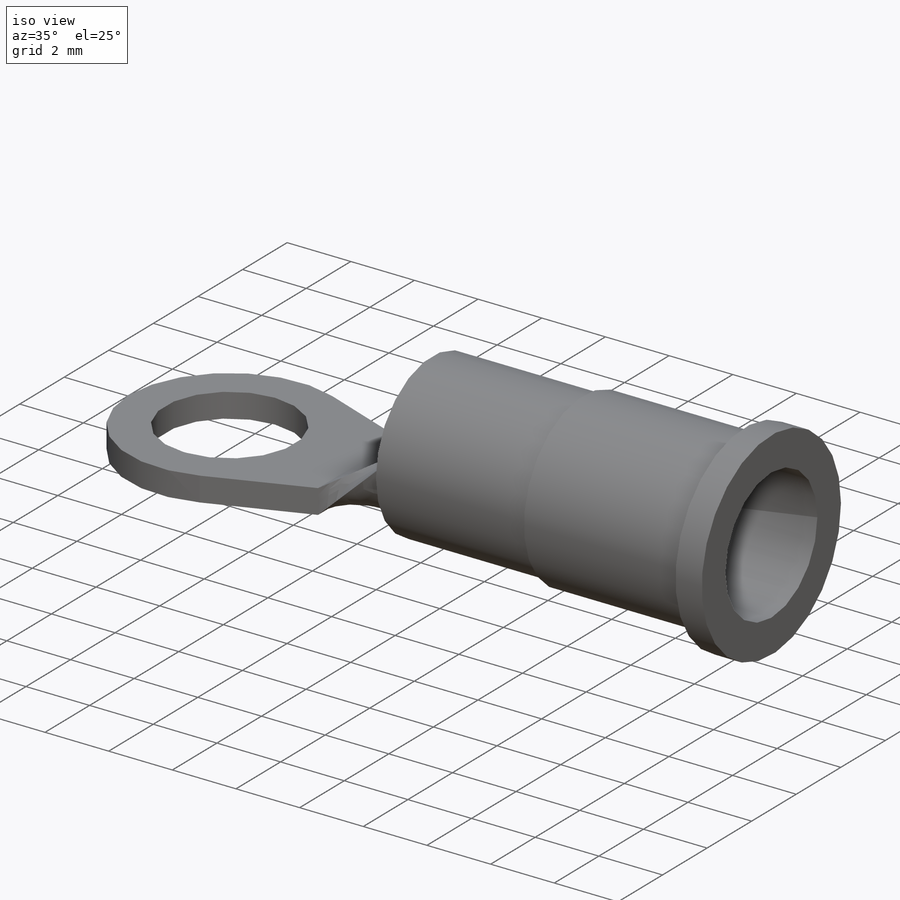
[diagram: iso view]
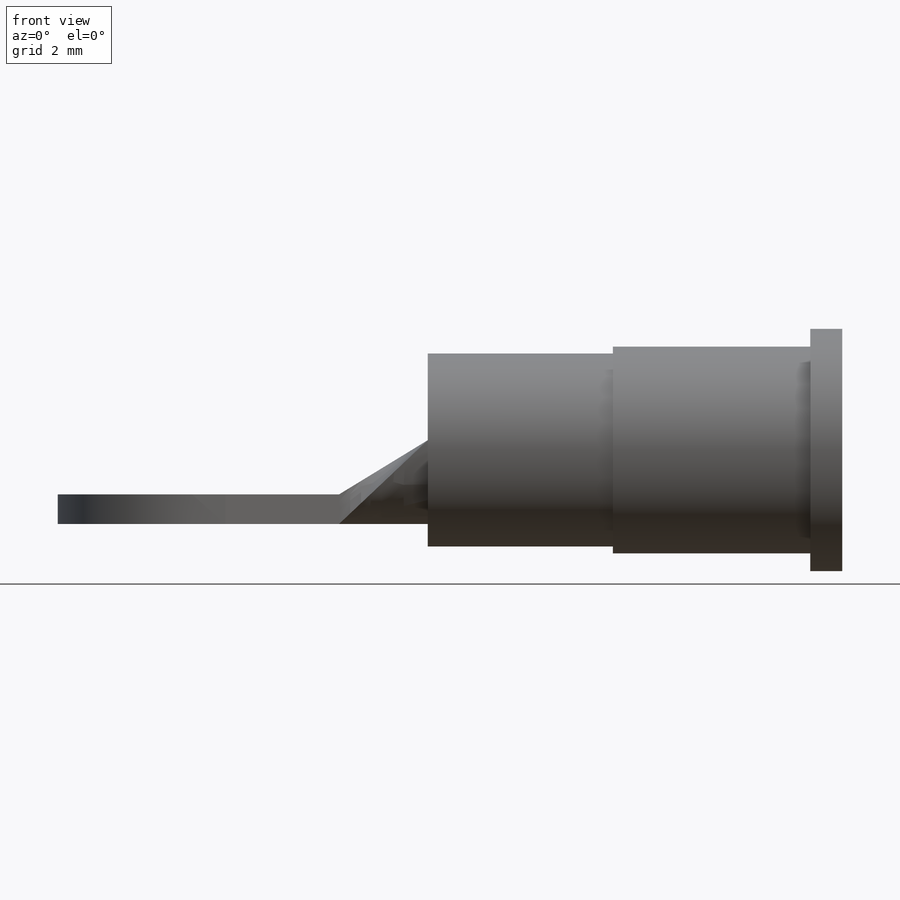
[diagram: front view]
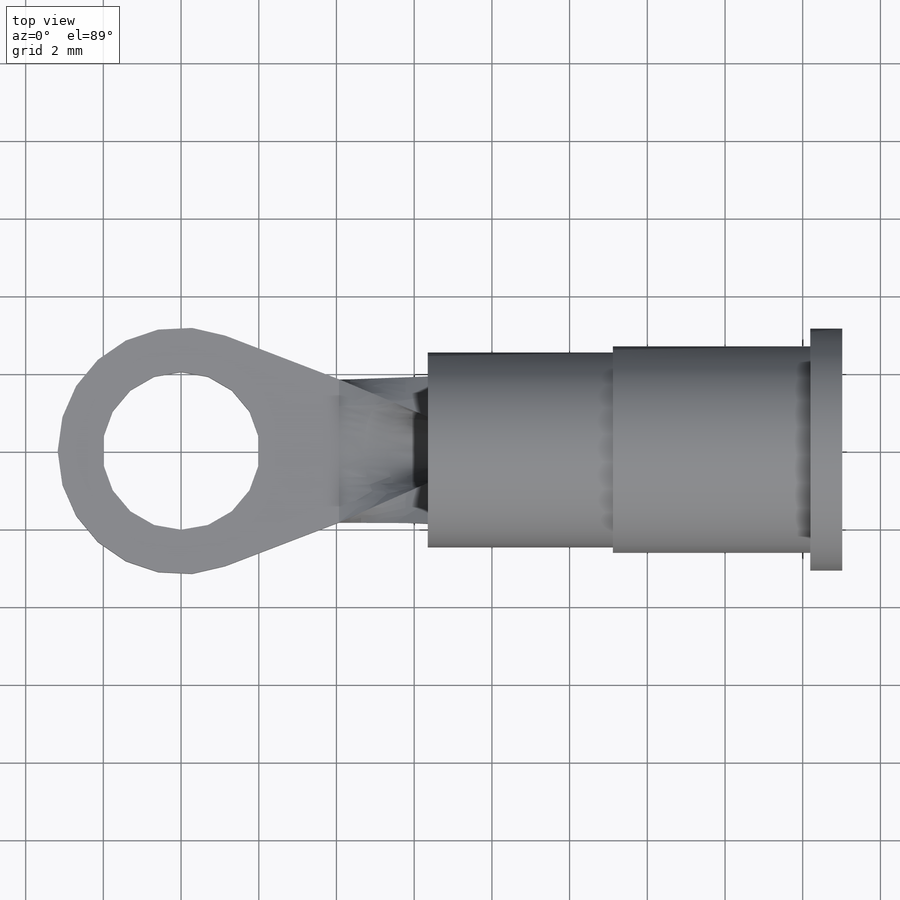
[diagram: top view]
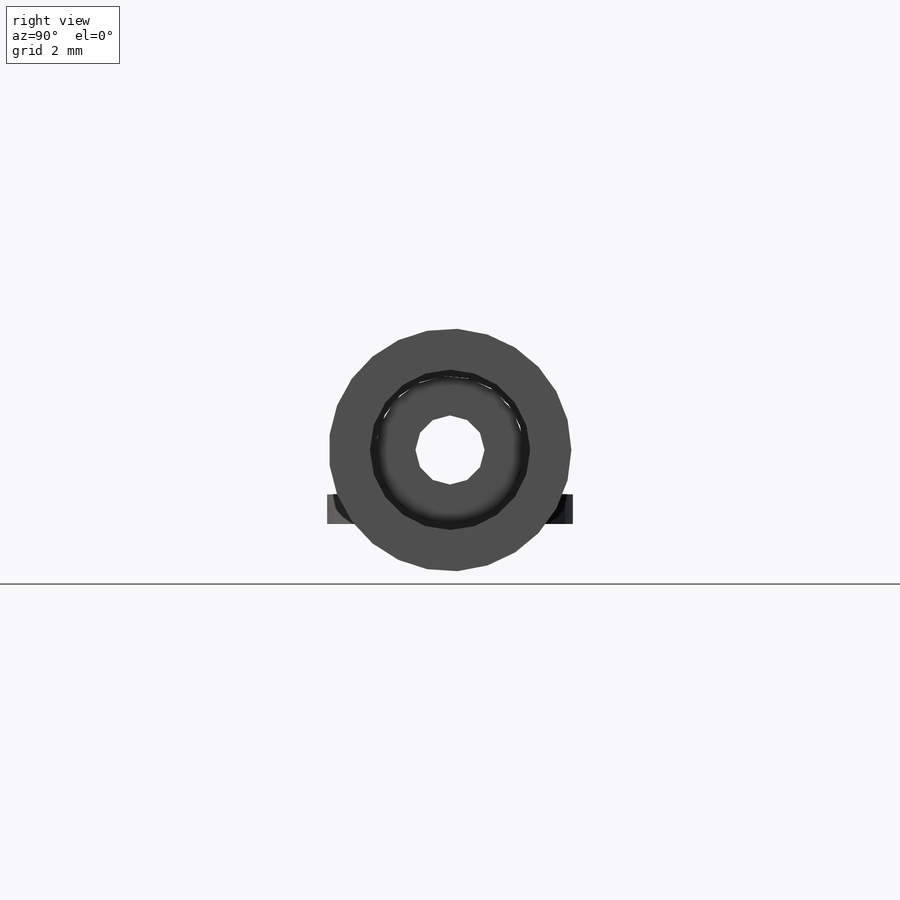
[diagram: right view]
SOLIDWORKS PART (.sldprt)
format: sldprt  version: not decoded by parser v0  size: 227,840 bytes
history: native  units: mm
features: sketch x6, extrude x2, material x1, plane x1, revolve x1 (+12 scaffold rows collapsed)
feature tree (23):
  scaffold x12  (default folders/planes/origin — collapsed)
  material  "Material <not specified>"
  sketch  "Sketch1"  dims[D1=6.35mm D2=4.064mm D3=4.064mm D4=3.683mm]
  extrude  "Extrude1"  Depth=0.762mm
  plane  "Plane1"  Offset=6.35mm
  sketch  "Sketch2"  dims[D1=1.778mm D2=1.016mm]
  extrude  "Extrude2"  Depth=6.35mm
  sketch  "Sketch3"  dims[D2=2.159mm D1=0.0mm]
  sketch  "Sketch4"  dims[D1=0.0mm]
  sketch  "Sketch5"
  sketch  "Sketch7"  dims[c1.D1=5.0165mm c1.D2=4.7625mm c1.D3=5.334mm c1.D4=17.018mm c1.D5=6.2484mm c2.D4=17.018mm c2.D6=0.8255mm]
  revolve  "Housing"  Angle=360deg
decode coverage: 8 of 9 modeling features carry decoded parameters
note: suppression state not decoded; provenance and decode notes live in map.json
